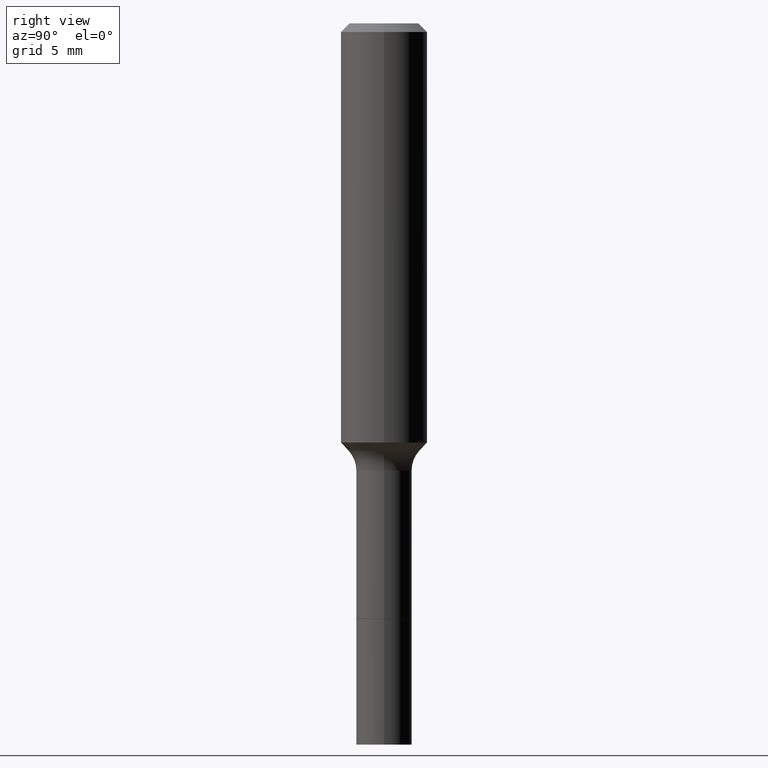
[diagram: clean part render]
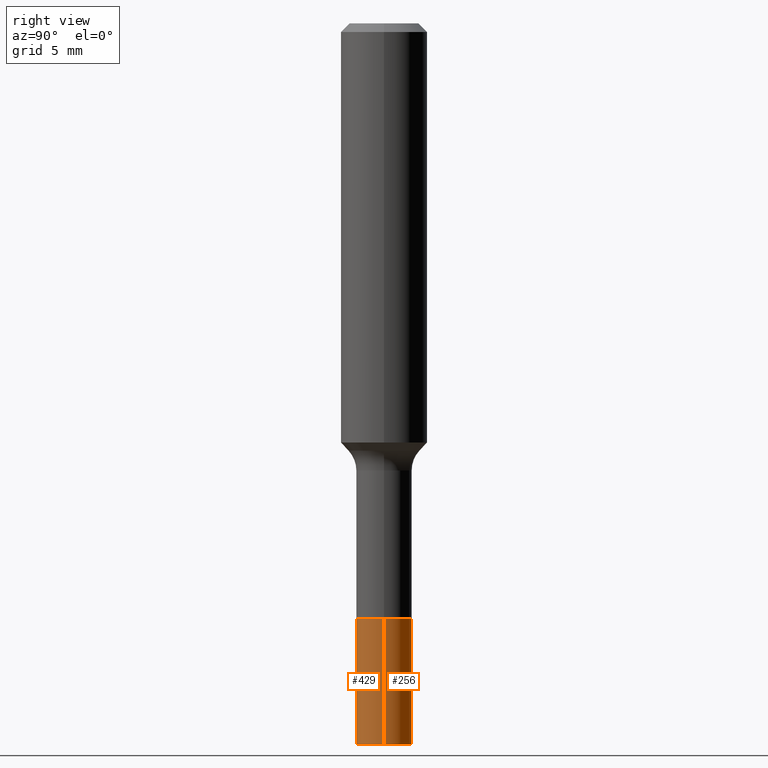
[diagram: same view with one multi-face feature highlighted, each face labeled with its STEP entity id]
A machine part, right view. The highlighted faces form ONE feature: a constant-radius fillet chain: 2 tangent blend faces with common blend radius 1.9304 mm. The faces share edges in the B-rep.
Their STEP definitions:
[1] entity #256 (Cylinder):
#10 = DIRECTION ( 'NONE',  ( 1.000000000000000000, -6.982962677686269077E-15, 0.000000000000000000 ) ) ;
#11 = VERTEX_POINT ( 'NONE', #265 ) ;
#59 = CARTESIAN_POINT ( 'NONE',  ( -0.07600000000000012301, -5.734179486723455696E-15, -1.968500000000000139 ) ) ;
#66 = EDGE_CURVE ( 'NONE', #278, #380, #220, .T. ) ;
#68 = CARTESIAN_POINT ( 'NONE',  ( -0.07600000000000005362, -5.135390437111856307E-15, -1.625499999999999945 ) ) ;
#73 = EDGE_LOOP ( 'NONE', ( #157, #448, #325, #407 ) ) ;
#97 = VECTOR ( 'NONE', #224, 39.37007874015748143 ) ;
#102 = CARTESIAN_POINT ( 'NONE',  ( 0.07600000000000005362, -6.206108079793689734E-15, -1.625499999999999945 ) ) ;
#114 = DIRECTION ( 'NONE',  ( -2.445468806185136597E-29, 3.491481338843145583E-15, 1.000000000000000000 ) ) ;
#116 = EDGE_CURVE ( 'NONE', #483, #11, #459, .T. ) ;
#134 = EDGE_CURVE ( 'NONE', #380, #11, #447, .T. ) ;
#139 = DIRECTION ( 'NONE',  ( 1.000000000000000000, -6.982962677686269866E-15, 0.000000000000000000 ) ) ;
#141 = DIRECTION ( 'NONE',  ( -2.445468806185136597E-29, 3.491481338843145583E-15, 1.000000000000000000 ) ) ;
#150 = DIRECTION ( 'NONE',  ( -2.445468806185136597E-29, 3.491481338843145583E-15, 1.000000000000000000 ) ) ;
#156 = AXIS2_PLACEMENT_3D ( 'NONE', #495, #141, #139 ) ;
#157 = ORIENTED_EDGE ( 'NONE', *, *, #488, .T. ) ;
#158 = CARTESIAN_POINT ( 'NONE',  ( 0.07600000000000012301, -7.403686179016889303E-15, -1.968500000000000139 ) ) ;
#172 = AXIS2_PLACEMENT_3D ( 'NONE', #468, #114, #318 ) ;
#220 = LINE ( 'NONE', #102, #234 ) ;
#224 = DIRECTION ( 'NONE',  ( -2.445468806185136877E-29, 3.491481338843145188E-15, 1.000000000000000000 ) ) ;
#234 = VECTOR ( 'NONE', #343, 39.37007874015748143 ) ;
#237 = CYLINDRICAL_SURFACE ( 'NONE', #172, 0.07600000000000005362 ) ;
#239 = CARTESIAN_POINT ( 'NONE',  ( 0.07599999999999999811, -6.206108079793689734E-15, -1.625499999999999945 ) ) ;
#256 = ADVANCED_FACE ( 'NONE', ( #314 ), #237, .T. ) ;
#265 = CARTESIAN_POINT ( 'NONE',  ( -0.07599999999999999811, -5.734179486723456485E-15, -1.625499999999999945 ) ) ;
#278 = VERTEX_POINT ( 'NONE', #158 ) ;
#314 = FACE_OUTER_BOUND ( 'NONE', #73, .T. ) ;
#318 = DIRECTION ( 'NONE',  ( 1.000000000000000000, -6.982962677686263555E-15, 0.000000000000000000 ) ) ;
#325 = ORIENTED_EDGE ( 'NONE', *, *, #134, .F. ) ;
#341 = CIRCLE ( 'NONE', #156, 0.07600000000000012301 ) ;
#343 = DIRECTION ( 'NONE',  ( -2.445468806185136877E-29, 3.491481338843145188E-15, 1.000000000000000000 ) ) ;
#380 = VERTEX_POINT ( 'NONE', #239 ) ;
#407 = ORIENTED_EDGE ( 'NONE', *, *, #66, .F. ) ;
#447 = CIRCLE ( 'NONE', #487, 0.07599999999999999811 ) ;
#448 = ORIENTED_EDGE ( 'NONE', *, *, #116, .T. ) ;
#459 = LINE ( 'NONE', #68, #97 ) ;
#468 = CARTESIAN_POINT ( 'NONE',  ( 3.975109544453939211E-29, -5.675402916289532927E-15, -1.625499999999999945 ) ) ;
#483 = VERTEX_POINT ( 'NONE', #59 ) ;
#487 = AXIS2_PLACEMENT_3D ( 'NONE', #505, #150, #10 ) ;
#488 = EDGE_CURVE ( 'NONE', #278, #483, #341, .T. ) ;
#495 = CARTESIAN_POINT ( 'NONE',  ( 4.813905344975441835E-29, -6.872981015512731707E-15, -1.968500000000000139 ) ) ;
#505 = CARTESIAN_POINT ( 'NONE',  ( 3.975109544453939211E-29, -5.675402916289532927E-15, -1.625499999999999945 ) ) ;
[2] entity #429 (Cylinder):
#11 = VERTEX_POINT ( 'NONE', #265 ) ;
#14 = EDGE_CURVE ( 'NONE', #11, #380, #259, .T. ) ;
#17 = CARTESIAN_POINT ( 'NONE',  ( 4.813905344975441835E-29, -6.872981015512731707E-15, -1.968500000000000139 ) ) ;
#28 = ORIENTED_EDGE ( 'NONE', *, *, #53, .T. ) ;
#53 = EDGE_CURVE ( 'NONE', #483, #278, #367, .T. ) ;
#59 = CARTESIAN_POINT ( 'NONE',  ( -0.07600000000000012301, -5.734179486723455696E-15, -1.968500000000000139 ) ) ;
#66 = EDGE_CURVE ( 'NONE', #278, #380, #220, .T. ) ;
#68 = CARTESIAN_POINT ( 'NONE',  ( -0.07600000000000005362, -5.135390437111856307E-15, -1.625499999999999945 ) ) ;
#84 = ORIENTED_EDGE ( 'NONE', *, *, #116, .F. ) ;
#97 = VECTOR ( 'NONE', #224, 39.37007874015748143 ) ;
#102 = CARTESIAN_POINT ( 'NONE',  ( 0.07600000000000005362, -6.206108079793689734E-15, -1.625499999999999945 ) ) ;
#103 = AXIS2_PLACEMENT_3D ( 'NONE', #346, #308, #218 ) ;
#116 = EDGE_CURVE ( 'NONE', #483, #11, #459, .T. ) ;
#158 = CARTESIAN_POINT ( 'NONE',  ( 0.07600000000000012301, -7.403686179016889303E-15, -1.968500000000000139 ) ) ;
#218 = DIRECTION ( 'NONE',  ( 1.000000000000000000, -6.982962677686269077E-15, 0.000000000000000000 ) ) ;
#220 = LINE ( 'NONE', #102, #234 ) ;
#224 = DIRECTION ( 'NONE',  ( -2.445468806185136877E-29, 3.491481338843145188E-15, 1.000000000000000000 ) ) ;
#234 = VECTOR ( 'NONE', #343, 39.37007874015748143 ) ;
#239 = CARTESIAN_POINT ( 'NONE',  ( 0.07599999999999999811, -6.206108079793689734E-15, -1.625499999999999945 ) ) ;
#259 = CIRCLE ( 'NONE', #103, 0.07599999999999999811 ) ;
#265 = CARTESIAN_POINT ( 'NONE',  ( -0.07599999999999999811, -5.734179486723456485E-15, -1.625499999999999945 ) ) ;
#278 = VERTEX_POINT ( 'NONE', #158 ) ;
#297 = FACE_OUTER_BOUND ( 'NONE', #439, .T. ) ;
#306 = DIRECTION ( 'NONE',  ( -2.445468806185136597E-29, 3.491481338843145583E-15, 1.000000000000000000 ) ) ;
#308 = DIRECTION ( 'NONE',  ( -2.445468806185136597E-29, 3.491481338843145583E-15, 1.000000000000000000 ) ) ;
#324 = CYLINDRICAL_SURFACE ( 'NONE', #340, 0.07600000000000005362 ) ;
#333 = AXIS2_PLACEMENT_3D ( 'NONE', #17, #306, #342 ) ;
#340 = AXIS2_PLACEMENT_3D ( 'NONE', #404, #414, #401 ) ;
#342 = DIRECTION ( 'NONE',  ( 1.000000000000000000, -6.982962677686269866E-15, 0.000000000000000000 ) ) ;
#343 = DIRECTION ( 'NONE',  ( -2.445468806185136877E-29, 3.491481338843145188E-15, 1.000000000000000000 ) ) ;
#346 = CARTESIAN_POINT ( 'NONE',  ( 3.975109544453939211E-29, -5.675402916289532927E-15, -1.625499999999999945 ) ) ;
#367 = CIRCLE ( 'NONE', #333, 0.07600000000000012301 ) ;
#380 = VERTEX_POINT ( 'NONE', #239 ) ;
#401 = DIRECTION ( 'NONE',  ( 1.000000000000000000, -6.982962677686263555E-15, 0.000000000000000000 ) ) ;
#404 = CARTESIAN_POINT ( 'NONE',  ( 3.975109544453939211E-29, -5.675402916289532927E-15, -1.625499999999999945 ) ) ;
#414 = DIRECTION ( 'NONE',  ( -2.445468806185136597E-29, 3.491481338843145583E-15, 1.000000000000000000 ) ) ;
#429 = ADVANCED_FACE ( 'NONE', ( #297 ), #324, .T. ) ;
#439 = EDGE_LOOP ( 'NONE', ( #84, #28, #443, #457 ) ) ;
#443 = ORIENTED_EDGE ( 'NONE', *, *, #66, .T. ) ;
#457 = ORIENTED_EDGE ( 'NONE', *, *, #14, .F. ) ;
#459 = LINE ( 'NONE', #68, #97 ) ;
#483 = VERTEX_POINT ( 'NONE', #59 ) ;